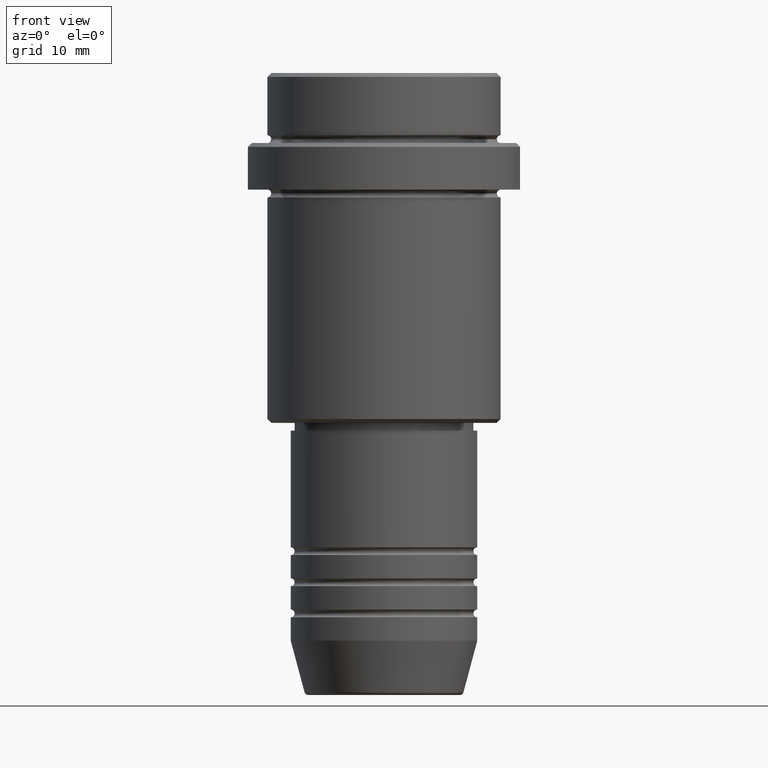
[diagram: clean part render]
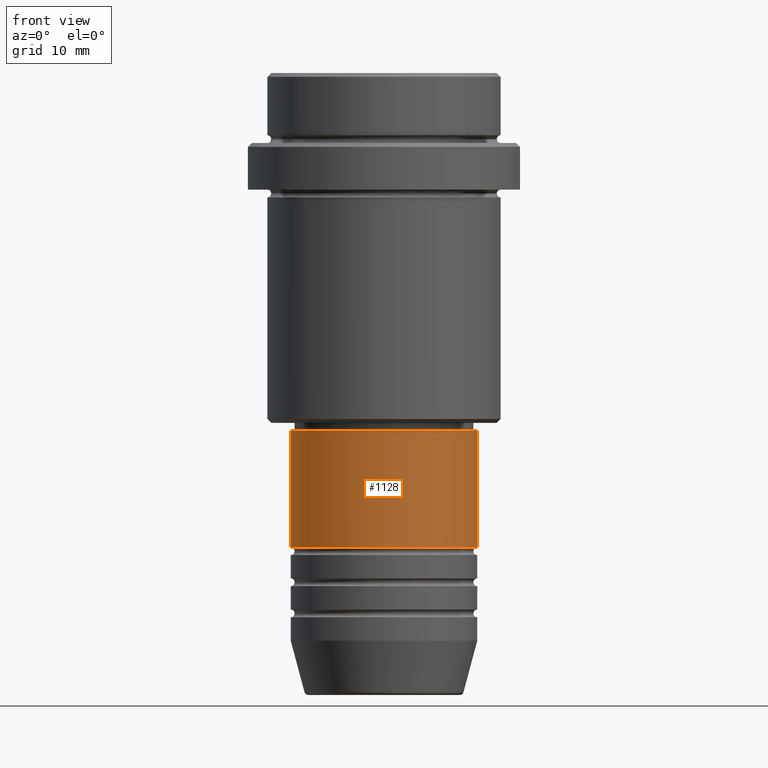
[diagram: same view with one face highlighted and labeled with its STEP entity id]
A machine part, front view. The second image highlights one B-rep face of the part: STEP entity #1128.
In plain terms, the highlighted cylindrical surface (partial cylindrical patch) has radius 12 mm, axis along (-0, -0, 1).
Its self-contained STEP definition (entity closure, byte-faithful):
#15 = EDGE_CURVE ( 'NONE', #657, #1404, #656, .T. ) ;
#36 = DIRECTION ( 'NONE',  ( -0.000000000000000000, -0.000000000000000000, 1.000000000000000000 ) ) ;
#107 = DIRECTION ( 'NONE',  ( 1.000000000000000000, 0.000000000000000000, 0.000000000000000000 ) ) ;
#143 = EDGE_CURVE ( 'NONE', #657, #1156, #281, .T. ) ;
#171 = EDGE_CURVE ( 'NONE', #1404, #1065, #696, .T. ) ;
#223 = CIRCLE ( 'NONE', #1292, 11.99999999999999822 ) ;
#225 = CARTESIAN_POINT ( 'NONE',  ( -11.99999999999999822, 1.469576158976823750E-15, -46.00000000000000000 ) ) ;
#281 = LINE ( 'NONE', #579, #366 ) ;
#366 = VECTOR ( 'NONE', #1333, 1000.000000000000000 ) ;
#459 = FACE_OUTER_BOUND ( 'NONE', #720, .T. ) ;
#460 = DIRECTION ( 'NONE',  ( -0.000000000000000000, -0.000000000000000000, 1.000000000000000000 ) ) ;
#472 = CYLINDRICAL_SURFACE ( 'NONE', #684, 12.00000000000000000 ) ;
#481 = ORIENTED_EDGE ( 'NONE', *, *, #640, .F. ) ;
#538 = CARTESIAN_POINT ( 'NONE',  ( 11.99999999999999822, 0.000000000000000000, -46.00000000000000000 ) ) ;
#579 = CARTESIAN_POINT ( 'NONE',  ( -12.00000000000000000, 1.469576158976823947E-15, 0.000000000000000000 ) ) ;
#582 = DIRECTION ( 'NONE',  ( 1.000000000000000000, 0.000000000000000000, 0.000000000000000000 ) ) ;
#592 = ORIENTED_EDGE ( 'NONE', *, *, #15, .T. ) ;
#640 = EDGE_CURVE ( 'NONE', #1156, #1065, #223, .T. ) ;
#656 = CIRCLE ( 'NONE', #1187, 12.00000000000000000 ) ;
#657 = VERTEX_POINT ( 'NONE', #679 ) ;
#672 = DIRECTION ( 'NONE',  ( 1.000000000000000000, 0.000000000000000000, 0.000000000000000000 ) ) ;
#679 = CARTESIAN_POINT ( 'NONE',  ( -12.00000000000000000, 1.469576158976823947E-15, -60.99999999999989342 ) ) ;
#684 = AXIS2_PLACEMENT_3D ( 'NONE', #1309, #1098, #672 ) ;
#688 = CARTESIAN_POINT ( 'NONE',  ( 0.000000000000000000, 0.000000000000000000, -46.00000000000000000 ) ) ;
#690 = CARTESIAN_POINT ( 'NONE',  ( 12.00000000000000000, 0.000000000000000000, 0.000000000000000000 ) ) ;
#696 = LINE ( 'NONE', #690, #817 ) ;
#720 = EDGE_LOOP ( 'NONE', ( #864, #592, #751, #481 ) ) ;
#751 = ORIENTED_EDGE ( 'NONE', *, *, #171, .T. ) ;
#817 = VECTOR ( 'NONE', #36, 1000.000000000000000 ) ;
#864 = ORIENTED_EDGE ( 'NONE', *, *, #143, .F. ) ;
#882 = CARTESIAN_POINT ( 'NONE',  ( 0.000000000000000000, 0.000000000000000000, -60.99999999999989342 ) ) ;
#1065 = VERTEX_POINT ( 'NONE', #538 ) ;
#1098 = DIRECTION ( 'NONE',  ( -0.000000000000000000, -0.000000000000000000, 1.000000000000000000 ) ) ;
#1128 = ADVANCED_FACE ( 'NONE', ( #459 ), #472, .T. ) ;
#1156 = VERTEX_POINT ( 'NONE', #225 ) ;
#1187 = AXIS2_PLACEMENT_3D ( 'NONE', #882, #1223, #107 ) ;
#1223 = DIRECTION ( 'NONE',  ( -0.000000000000000000, -0.000000000000000000, 1.000000000000000000 ) ) ;
#1290 = CARTESIAN_POINT ( 'NONE',  ( 12.00000000000000000, 0.000000000000000000, -60.99999999999989342 ) ) ;
#1292 = AXIS2_PLACEMENT_3D ( 'NONE', #688, #460, #582 ) ;
#1309 = CARTESIAN_POINT ( 'NONE',  ( 0.000000000000000000, 0.000000000000000000, 0.000000000000000000 ) ) ;
#1333 = DIRECTION ( 'NONE',  ( -0.000000000000000000, -0.000000000000000000, 1.000000000000000000 ) ) ;
#1404 = VERTEX_POINT ( 'NONE', #1290 ) ;